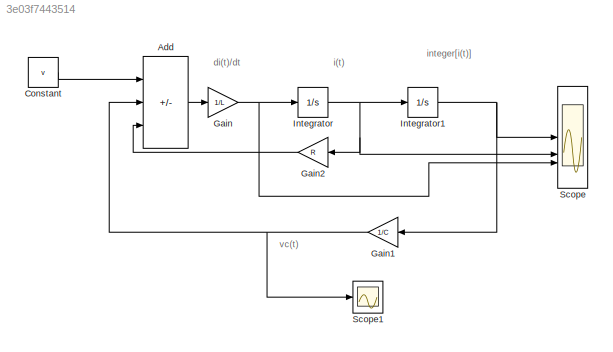
MODEL slx_3e03f7443514
KIND model
CONFIG AbsTol = auto
CONFIG EnableMultiTasking = off
CONFIG FixedStep = auto
CONFIG MaxStep = auto
CONFIG MinStep = auto
CONFIG RelTol = 1e-3
CONFIG SampleTimeConstraint = Unconstrained
CONFIG SolverName = VariableStepAuto
CONFIG StartTime = 0.0
CONFIG StopTime = 10
BLOCK [Sum] Add
  IconShape = rectangular
  Inputs = +--
BLOCK [Constant] Constant
  Value = v
BLOCK [Gain] Gain
  Gain = 1/L
BLOCK [Gain] Gain1
  Gain = 1/C
BLOCK [Gain] Gain2
  Gain = R
BLOCK [Integrator] Integrator
BLOCK [Integrator] Integrator1
BLOCK [Scope] Scope
  Floating = off
  NumInputPorts = 3
  ScopeSpecificationString = Simulink.scopes.TimeScopeBlockCfg('CurrentConfiguration', extmgr.ConfigurationSet(extmgr.Configuration('Core','General UI',true),extmgr.Configuration('Core','Source UI',true),extmgr.Configuration('Sources','WiredSimulink',true),extmgr.Configuration('Visuals','Time Domain',true,'SerializedDisplays',{struct('MinYLimReal','-0.62469','MaxYLimReal','5.62219','YLabelReal','','MinYLimMag','0.00000','MaxY...<+2709ch>
BLOCK [Scope] Scope1
  Floating = off
  NumInputPorts = 1
  ScopeSpecificationString = Simulink.scopes.TimeScopeBlockCfg('CurrentConfiguration', extmgr.ConfigurationSet(extmgr.Configuration('Core','General UI',true),extmgr.Configuration('Core','Source UI',true),extmgr.Configuration('Sources','WiredSimulink',true,'DataLoggingVariableName','ScopeData1'),extmgr.Configuration('Visuals','Time Domain',true,'SerializedDisplays',{struct('MinYLimReal','-0.62469','MaxYLimReal','5.62219','YLab...<+1399ch>
ANNOTATION (root): di(t)/dt
ANNOTATION (root): i(t)
ANNOTATION (root): integer[i(t)]
ANNOTATION (root): vc(t)
LINE Add:1 -> Gain:1
LINE Constant:1 -> Add:1
NET Gain1:1 -> Add:2, Scope1:1
LINE Gain2:1 -> Add:3
NET Gain:1 -> Integrator:1, Scope:3
NET Integrator1:1 -> Gain1:1, Scope:1
NET Integrator:1 -> Gain2:1, Integrator1:1, Scope:2
note: NET lines group one-source signal fan-out (src -> all destinations, sorted); 1:1 wires keep LINE
